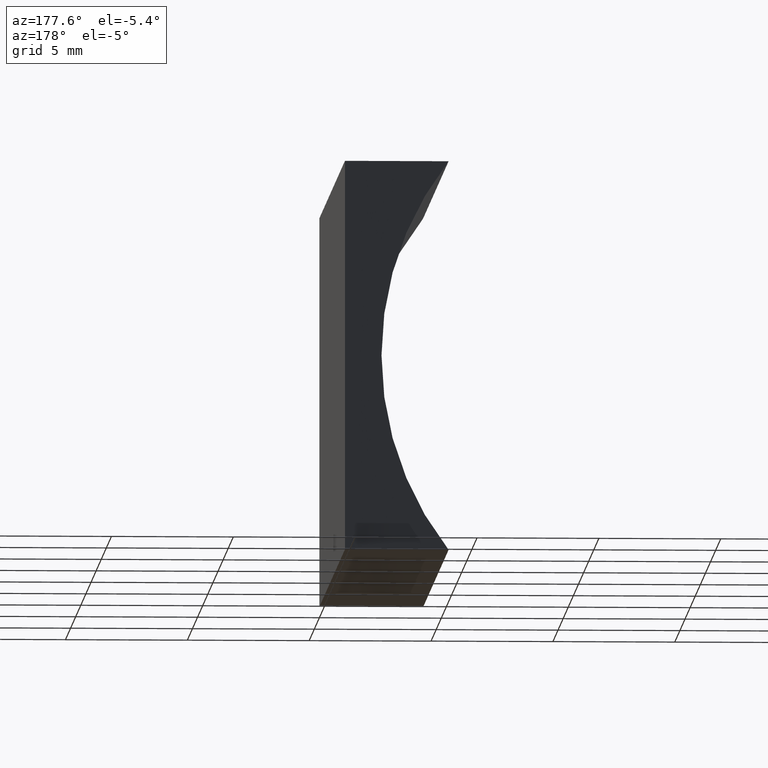
[diagram: clean part render]
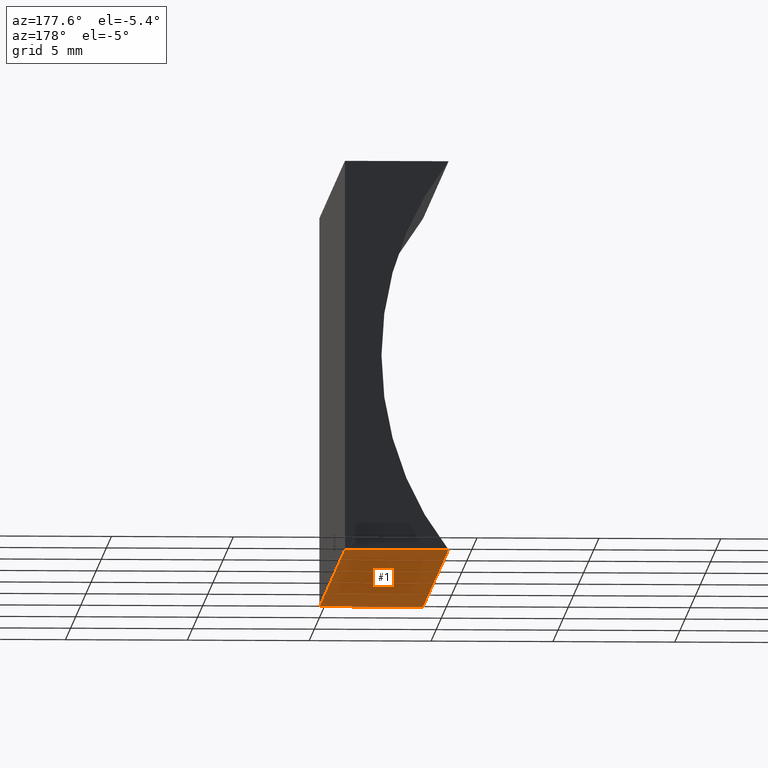
[diagram: same view with one face highlighted and labeled with its STEP entity id]
A machine part, auxiliary view. The second image highlights one B-rep face of the part: STEP entity #1.
In plain terms, the highlighted planar face has unit normal (0, -0, 1).
Its self-contained STEP definition (entity closure, byte-faithful):
#1 = ADVANCED_FACE ( 'NONE', ( #52 ), #100, .F. ) ;
#3 = VECTOR ( 'NONE', #71, 1000.000000000000000 ) ;
#9 = VERTEX_POINT ( 'NONE', #13 ) ;
#13 = CARTESIAN_POINT ( 'NONE',  ( 0.0000000000000000000, 25.00000000000000000, 0.0000000000000000000 ) ) ;
#14 = ORIENTED_EDGE ( 'NONE', *, *, #90, .T. ) ;
#16 = VERTEX_POINT ( 'NONE', #134 ) ;
#26 = CARTESIAN_POINT ( 'NONE',  ( 0.0000000000000000000, 0.0000000000000000000, 0.0000000000000000000 ) ) ;
#38 = ORIENTED_EDGE ( 'NONE', *, *, #137, .F. ) ;
#42 = LINE ( 'NONE', #178, #3 ) ;
#48 = VECTOR ( 'NONE', #133, 1000.000000000000000 ) ;
#52 = FACE_OUTER_BOUND ( 'NONE', #89, .T. ) ;
#53 = LINE ( 'NONE', #176, #150 ) ;
#57 = VECTOR ( 'NONE', #162, 1000.000000000000000 ) ;
#65 = ORIENTED_EDGE ( 'NONE', *, *, #84, .F. ) ;
#71 = DIRECTION ( 'NONE',  ( -1.000000000000000000, 0.0000000000000000000, 0.0000000000000000000 ) ) ;
#84 = EDGE_CURVE ( 'NONE', #93, #16, #118, .T. ) ;
#89 = EDGE_LOOP ( 'NONE', ( #14, #65, #38, #192 ) ) ;
#90 = EDGE_CURVE ( 'NONE', #204, #16, #42, .T. ) ;
#93 = VERTEX_POINT ( 'NONE', #131 ) ;
#97 = DIRECTION ( 'NONE',  ( 0.0000000000000000000, -0.0000000000000000000, 1.000000000000000000 ) ) ;
#98 = CARTESIAN_POINT ( 'NONE',  ( 0.0000000000000000000, 25.00000000000000000, 0.0000000000000000000 ) ) ;
#100 = PLANE ( 'NONE',  #199 ) ;
#106 = LINE ( 'NONE', #98, #48 ) ;
#118 = LINE ( 'NONE', #200, #57 ) ;
#131 = CARTESIAN_POINT ( 'NONE',  ( -4.253049234040400300, 25.00000000000000000, 1.734723475976807100E-015 ) ) ;
#132 = DIRECTION ( 'NONE',  ( -0.0000000000000000000, -1.000000000000000000, -0.0000000000000000000 ) ) ;
#133 = DIRECTION ( 'NONE',  ( -1.000000000000000000, 0.0000000000000000000, 0.0000000000000000000 ) ) ;
#134 = CARTESIAN_POINT ( 'NONE',  ( -4.253049234040400300, 0.0000000000000000000, 1.734723475976807100E-015 ) ) ;
#137 = EDGE_CURVE ( 'NONE', #9, #93, #106, .T. ) ;
#150 = VECTOR ( 'NONE', #132, 1000.000000000000000 ) ;
#157 = EDGE_CURVE ( 'NONE', #9, #204, #53, .T. ) ;
#162 = DIRECTION ( 'NONE',  ( -0.0000000000000000000, -1.000000000000000000, -0.0000000000000000000 ) ) ;
#176 = CARTESIAN_POINT ( 'NONE',  ( 0.0000000000000000000, 25.00000000000000000, 0.0000000000000000000 ) ) ;
#178 = CARTESIAN_POINT ( 'NONE',  ( 0.0000000000000000000, 0.0000000000000000000, 0.0000000000000000000 ) ) ;
#192 = ORIENTED_EDGE ( 'NONE', *, *, #157, .T. ) ;
#195 = CARTESIAN_POINT ( 'NONE',  ( 0.0000000000000000000, 25.00000000000000000, 0.0000000000000000000 ) ) ;
#197 = DIRECTION ( 'NONE',  ( 1.000000000000000000, 0.0000000000000000000, -0.0000000000000000000 ) ) ;
#199 = AXIS2_PLACEMENT_3D ( 'NONE', #195, #97, #197 ) ;
#200 = CARTESIAN_POINT ( 'NONE',  ( -4.253049234040400300, 25.00000000000000000, 1.734723475976807100E-015 ) ) ;
#204 = VERTEX_POINT ( 'NONE', #26 ) ;